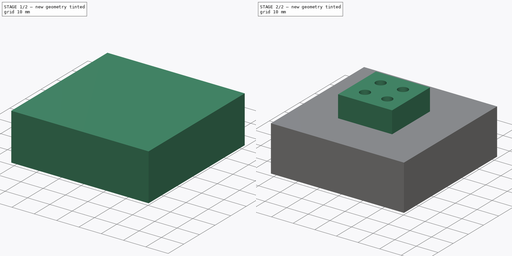
[diagram: build sequence overview — one tinted view per stage of 2, left to right]
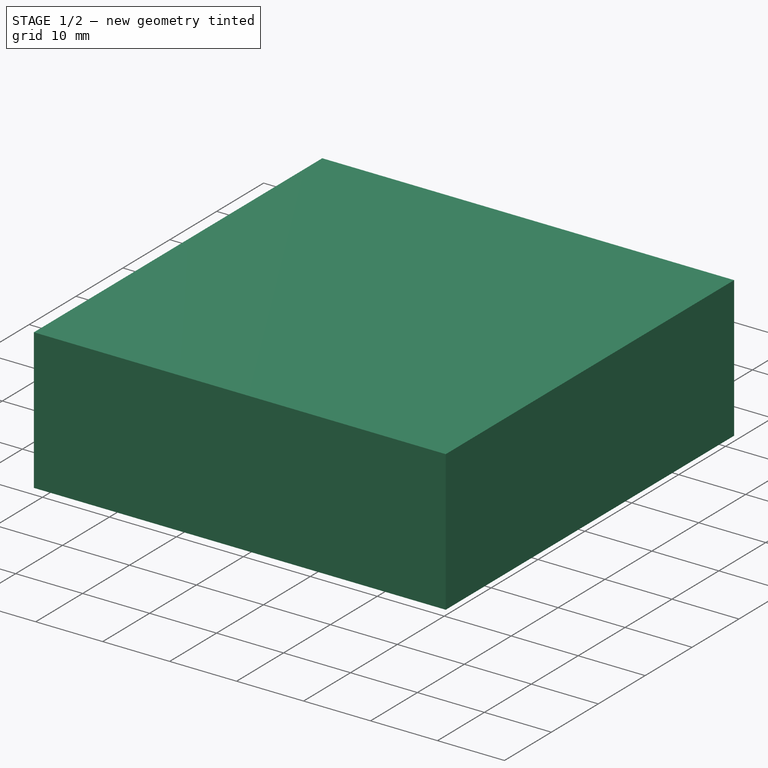
[diagram: stage 1 of 2 — iso view after this stage's code; geometry added in this stage tinted green]
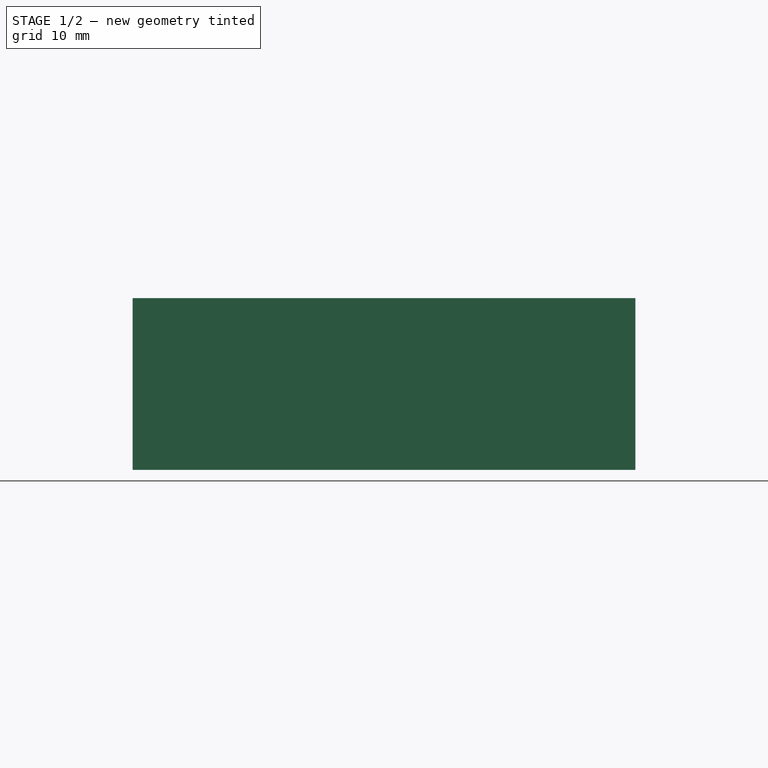
[diagram: stage 1 of 2 — front view after this stage's code; geometry added in this stage tinted green]
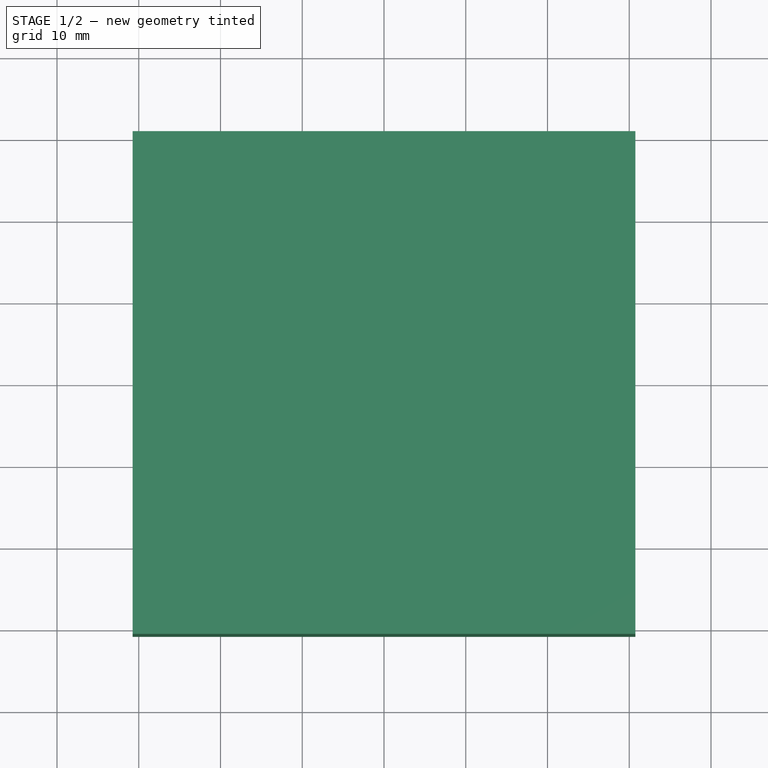
[diagram: stage 1 of 2 — top view after this stage's code; geometry added in this stage tinted green]
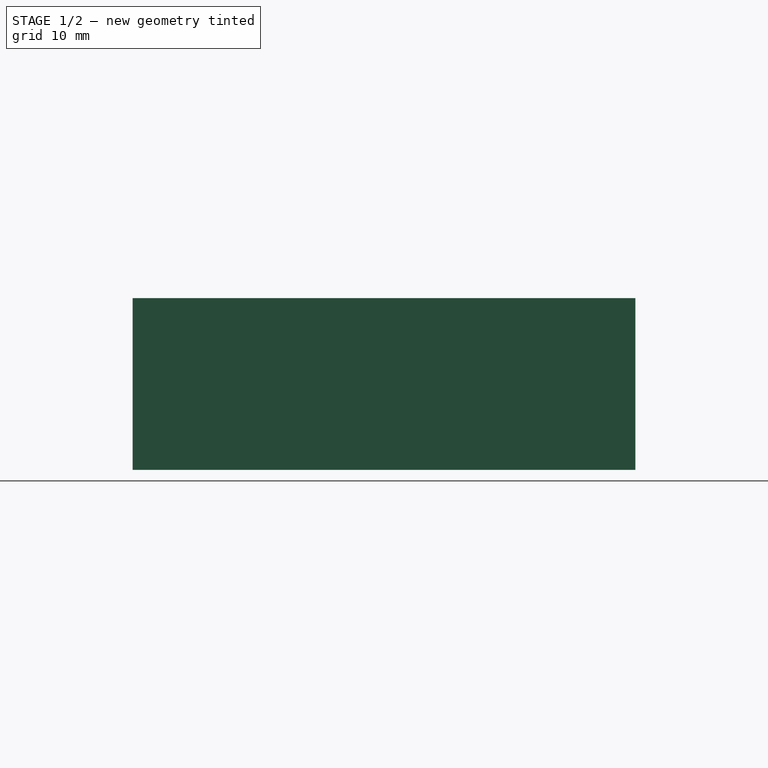
[diagram: stage 1 of 2 — right view after this stage's code; geometry added in this stage tinted green]
FCSTD DOCUMENT  (FreeCAD 0.15R4671 (Git))
Label: Drill Template Square Pattern
License: All rights reserved
LicenseURL: http://en.wikipedia.org/wiki/All_rights_reserved
objects: Sketcher::SketchObject×4, PartDesign::Pad×3, PartDesign::Pocket×1
note: 12 computed .brp shape members not serialized (recipe doc carries the construction recipe); baked Part::Feature solids carry a one-line shape summary decoded from their .brp

FEATURE [Sketcher::SketchObject] Sketch
  sketch-geometry (4):
    g0: LineSegment StartX=-30.75 StartY=30.75 StartZ=0 EndX=30.75 EndY=30.75 EndZ=0
    g1: LineSegment StartX=30.75 StartY=30.75 StartZ=0 EndX=30.75 EndY=-30.75 EndZ=0
    g2: LineSegment StartX=30.75 StartY=-30.75 StartZ=0 EndX=-30.75 EndY=-30.75 EndZ=0
    g3: LineSegment StartX=-30.75 StartY=-30.75 StartZ=0 EndX=-30.75 EndY=30.75 EndZ=0
  constraints (12):
    c: Coincident(g0,g1)
    c: Coincident(g1,g2)
    c: Coincident(g2,g3)
    c: Coincident(g3,g0)
    c: Horizontal(g0)
    c: Horizontal(g2)
    c: Vertical(g1)
    c: Vertical(g3)
    c: Equal(g0,g3)
    c: Symmetric(g0,g0,g-2)
    c: Symmetric(g0,g2,g-1)
    c: Distance(g0) = 61.5
FEATURE [PartDesign::Pad] Pad
  Length = 2
  Length2 = 100
  Sketch = -> Sketch
  Type = 0
FEATURE [Sketcher::SketchObject] Sketch001
  ExternalGeometry = -> [Pad]
  Placement = pos=(0,0,0) rot=(1,0,0;3.14159rad)
  Support = -> Pad [Face5]
  sketch-geometry (8):
    g0: LineSegment StartX=-30.75 StartY=30.75 StartZ=0 EndX=30.75 EndY=30.75 EndZ=0
    g1: LineSegment StartX=30.75 StartY=30.75 StartZ=0 EndX=30.75 EndY=-30.75 EndZ=0
    g2: LineSegment StartX=30.75 StartY=-30.75 StartZ=0 EndX=-30.75 EndY=-30.75 EndZ=0
    g3: LineSegment StartX=-30.75 StartY=-30.75 StartZ=0 EndX=-30.75 EndY=30.75 EndZ=0
    g4: LineSegment StartX=28.95 StartY=-28.95 StartZ=0 EndX=-28.95 EndY=-28.95 EndZ=0
    g5: LineSegment StartX=-28.95 StartY=-28.95 StartZ=0 EndX=-28.95 EndY=28.95 EndZ=0
    g6: LineSegment StartX=-28.95 StartY=28.95 StartZ=0 EndX=28.95 EndY=28.95 EndZ=0
    g7: LineSegment StartX=28.95 StartY=28.95 StartZ=0 EndX=28.95 EndY=-28.95 EndZ=0
  constraints (22):
    c: Coincident(g0,g1)
    c: Coincident(g1,g2)
    c: Coincident(g2,g3)
    c: Coincident(g3,g0)
    c: Horizontal(g0)
    c: Horizontal(g2)
    c: Vertical(g1)
    c: Vertical(g3)
    c: Coincident(g0,g-5)
    c: Coincident(g1,g-6)
    c: Coincident(g4,g5)
    c: Coincident(g5,g6)
    c: Coincident(g6,g7)
    c: Coincident(g7,g4)
    c: Horizontal(g4)
    c: Horizontal(g6)
    c: Vertical(g5)
    c: Vertical(g7)
    c: Symmetric(g5,g6,g-2)
    c: Symmetric(g6,g4,g-1)
    c: Distance(g7) = 57.9
    c: Equal(g6,g5)
FEATURE [PartDesign::Pad] Pad001
  Length = 19
  Length2 = 100
  Sketch = -> Sketch001
  Type = 0
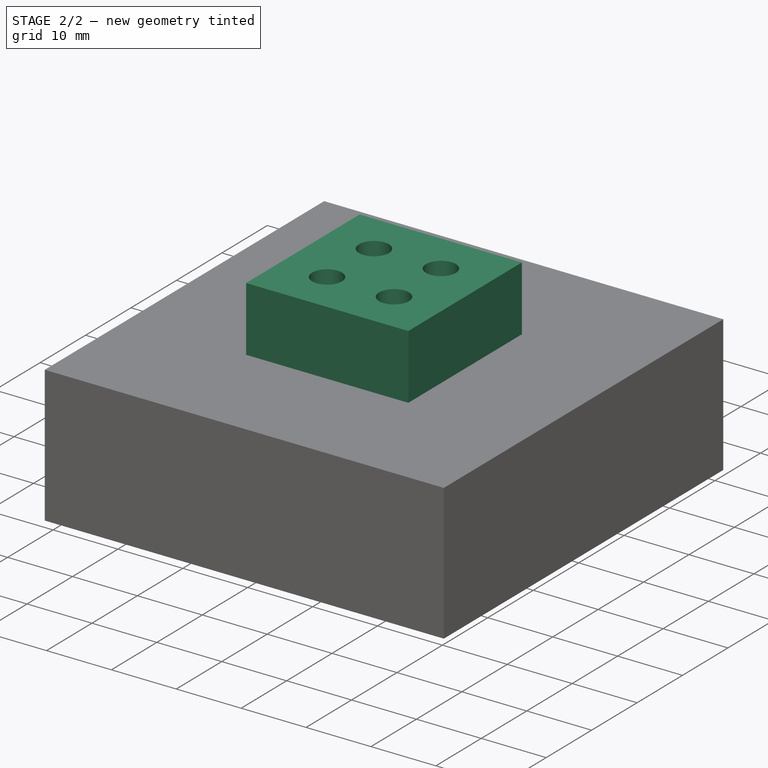
[diagram: stage 2 of 2 — iso view after this stage's code; geometry added in this stage tinted green]
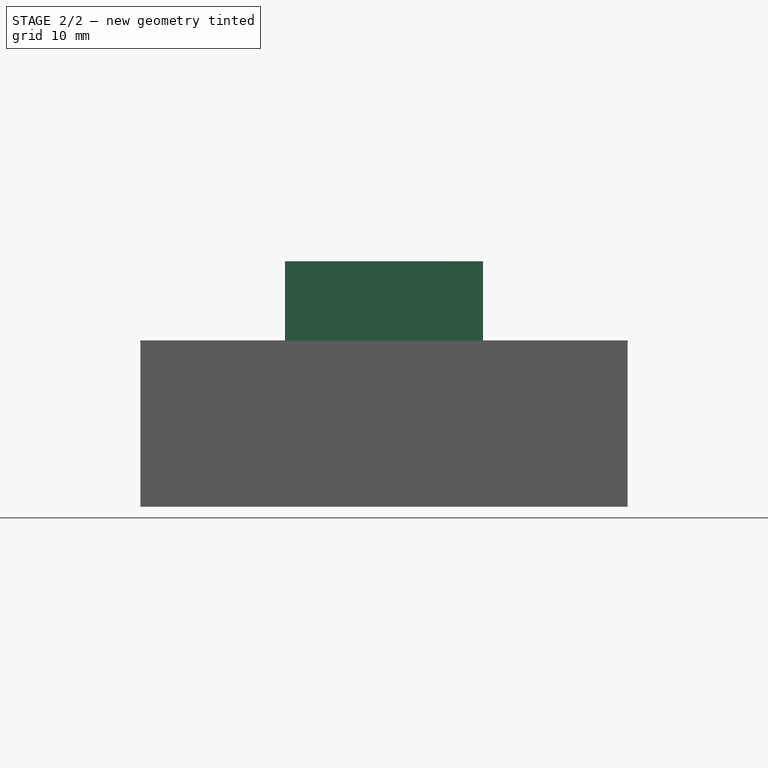
[diagram: stage 2 of 2 — front view after this stage's code; geometry added in this stage tinted green]
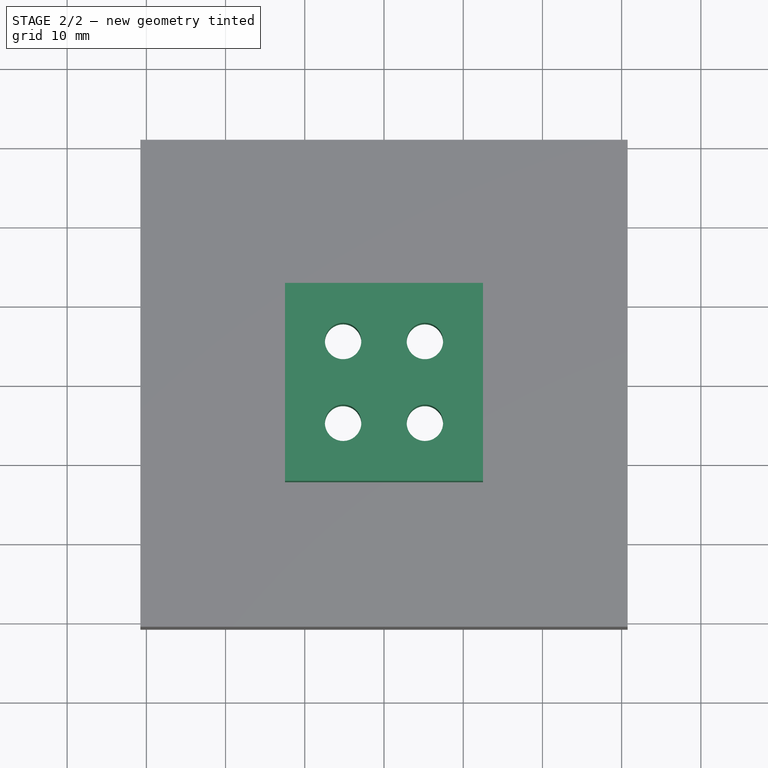
[diagram: stage 2 of 2 — top view after this stage's code; geometry added in this stage tinted green]
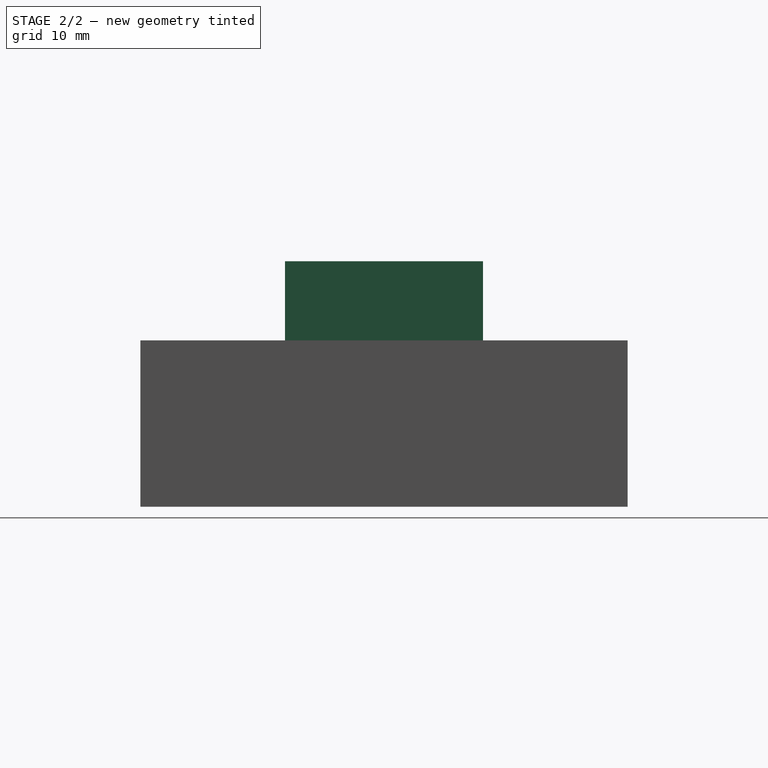
[diagram: stage 2 of 2 — right view after this stage's code; geometry added in this stage tinted green]
FEATURE [Sketcher::SketchObject] Sketch002
  Placement = pos=(0,0,2) rot=(0,0,1;0rad)
  Support = -> Pad001 [Face1]
  sketch-geometry (4):
    g0: LineSegment StartX=-12.5 StartY=12.5 StartZ=0 EndX=12.5 EndY=12.5 EndZ=0
    g1: LineSegment StartX=12.5 StartY=12.5 StartZ=0 EndX=12.5 EndY=-12.5 EndZ=0
    g2: LineSegment StartX=12.5 StartY=-12.5 StartZ=0 EndX=-12.5 EndY=-12.5 EndZ=0
    g3: LineSegment StartX=-12.5 StartY=-12.5 StartZ=0 EndX=-12.5 EndY=12.5 EndZ=0
  constraints (12):
    c: Coincident(g0,g1)
    c: Coincident(g1,g2)
    c: Coincident(g2,g3)
    c: Coincident(g3,g0)
    c: Horizontal(g0)
    c: Horizontal(g2)
    c: Vertical(g1)
    c: Vertical(g3)
    c: Equal(g0,g3)
    c: Symmetric(g0,g0,g-2)
    c: Symmetric(g0,g2,g-1)
    c: Distance(g0) = 25
FEATURE [PartDesign::Pad] Pad002
  Length = 10
  Length2 = 100
  Sketch = -> Sketch002
  Type = 0
FEATURE [Sketcher::SketchObject] Sketch003
  Placement = pos=(0,0,12) rot=(0,0,1;0rad)
  Support = -> Pad002 [Face19]
  sketch-geometry (9):
    g0: Circle CenterX=-5.16188 CenterY=5.16188 CenterZ=0 NormalX=0 NormalY=0 NormalZ=1 Radius=2.3
    g1: Circle CenterX=5.16188 CenterY=-5.16188 CenterZ=0 NormalX=0 NormalY=0 NormalZ=1 Radius=2.3
    g2: Circle CenterX=5.16188 CenterY=5.16188 CenterZ=0 NormalX=0 NormalY=0 NormalZ=1 Radius=2.3
    g3: Circle CenterX=-5.16188 CenterY=-5.16188 CenterZ=0 NormalX=0 NormalY=0 NormalZ=1 Radius=2.3
    g4: Circle [constr] CenterX=0 CenterY=0 CenterZ=0 NormalX=0 NormalY=0 NormalZ=1 Radius=7.3
    g5: LineSegment [constr] StartX=5.16188 StartY=5.16188 StartZ=0 EndX=-5.16188 EndY=5.16188 EndZ=0
    g6: LineSegment [constr] StartX=-5.16188 StartY=5.16188 StartZ=0 EndX=-5.16188 EndY=-5.16188 EndZ=0
    g7: LineSegment [constr] StartX=-5.16188 StartY=-5.16188 StartZ=0 EndX=5.16188 EndY=-5.16188 EndZ=0
    g8: LineSegment [constr] StartX=5.16188 StartY=-5.16188 StartZ=0 EndX=5.16188 EndY=5.16188 EndZ=0
  constraints (22):
    c: Equal(g3,g0)
    c: Equal(g0,g2)
    c: Equal(g2,g1)
    c: Radius(g3) = 2.3
    c: Coincident(g4,g-1)
    c: PointOnObject(g1,g4)
    c: PointOnObject(g0,g4)
    c: PointOnObject(g2,g4)
    c: PointOnObject(g3,g4)
    c: Radius(g4) = 7.3
    c: Coincident(g5,g2)
    c: Coincident(g5,g0)
    c: Coincident(g6,g0)
    c: Coincident(g6,g3)
    c: Coincident(g7,g3)
    c: Coincident(g7,g1)
    c: Coincident(g8,g1)
    c: Coincident(g8,g2)
    c: Equal(g5,g8)
    c: Equal(g8,g7)
    c: Equal(g7,g6)
    c: Horizontal(g5)
FEATURE [PartDesign::Pocket] Pocket
  Length = 5
  Sketch = -> Sketch003
  Type = 1
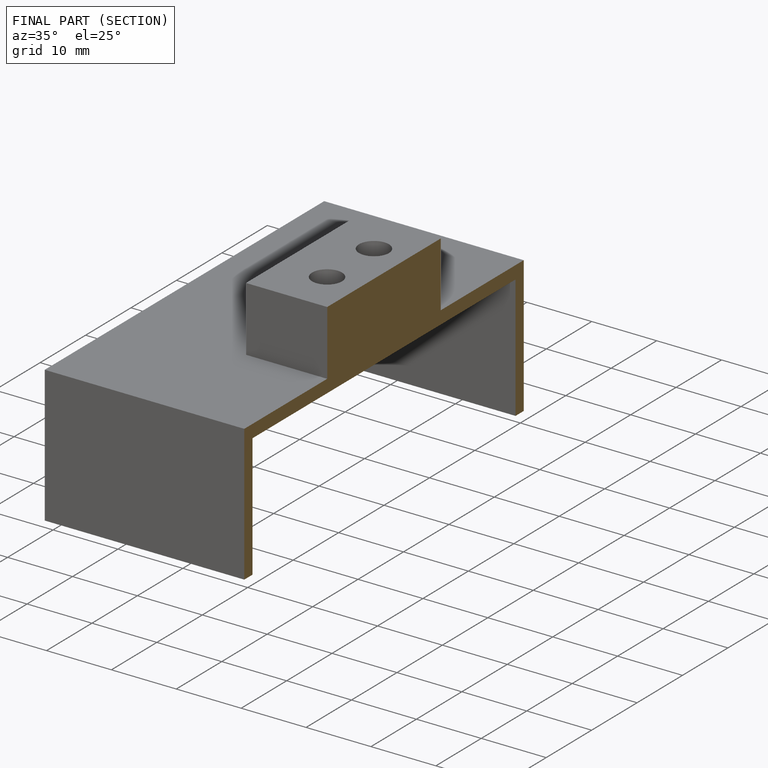
[diagram: finished part — half-section view (interior)]
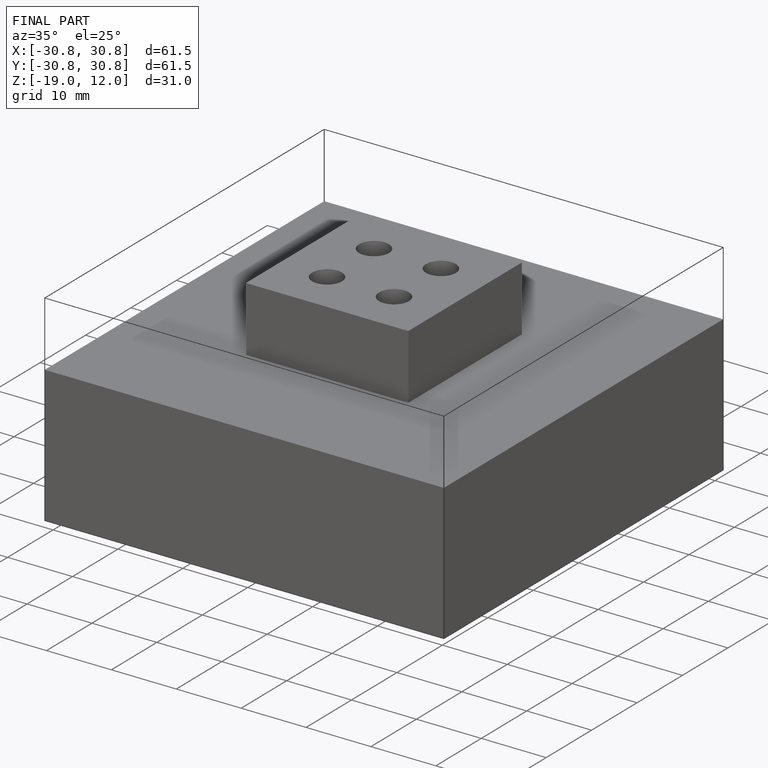
[diagram: finished part — iso view with bounding-box wireframe]
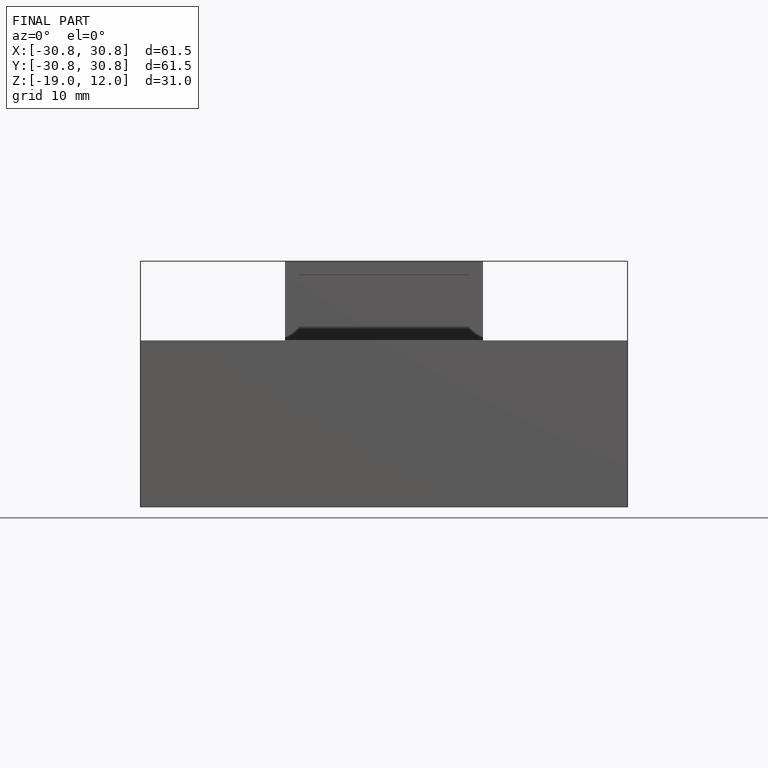
[diagram: finished part — front view with bounding-box wireframe]
